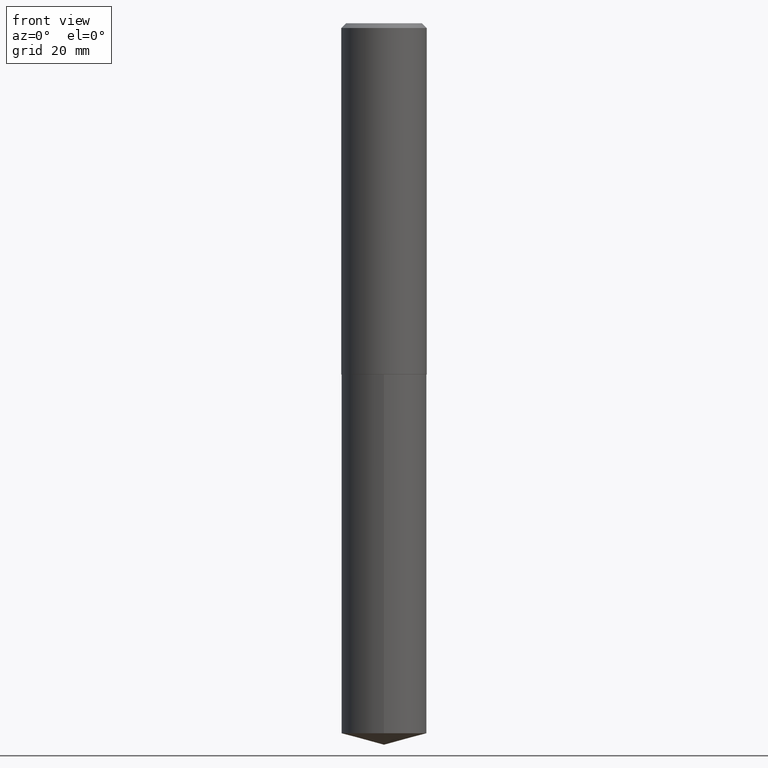
[diagram: clean part render]
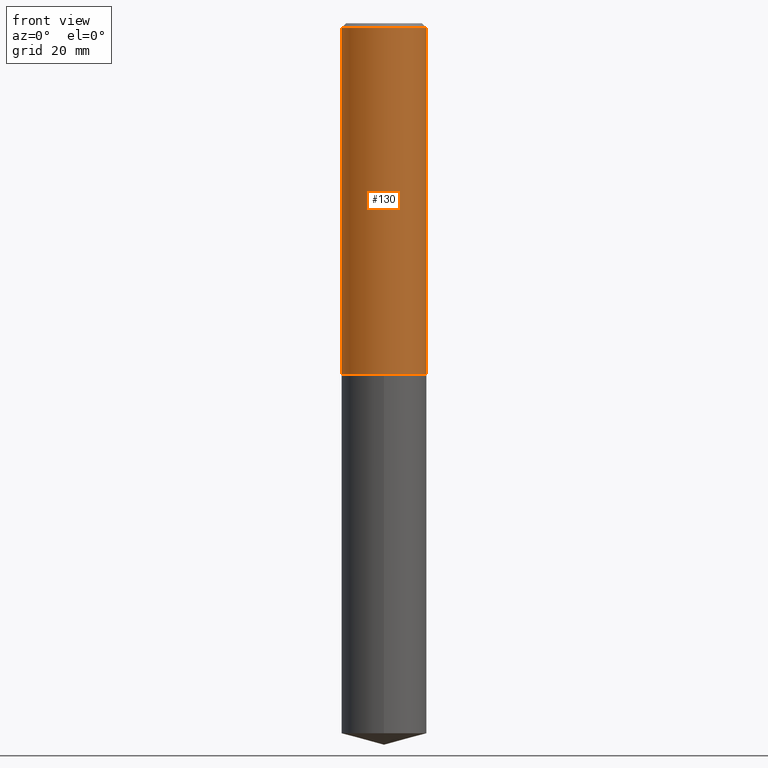
[diagram: same view with one face highlighted and labeled with its STEP entity id]
A machine part, front view. The second image highlights one B-rep face of the part: STEP entity #130.
In plain terms, the highlighted cylindrical surface (partial cylindrical patch) has radius 7.1438 mm, axis along (-0, 0, 1).
Its self-contained STEP definition (entity closure, byte-faithful):
#6 = CARTESIAN_POINT ( 'NONE',  ( -0.2812500000000001665, 1.998401444325282956E-15, -1.383450494134192829E-29 ) ) ;
#17 = EDGE_CURVE ( 'NONE', #211, #205, #274, .T. ) ;
#23 = ORIENTED_EDGE ( 'NONE', *, *, #17, .F. ) ;
#40 = DIRECTION ( 'NONE',  ( -2.445468806185136877E-29, 3.491481338843145188E-15, 1.000000000000000000 ) ) ;
#64 = DIRECTION ( 'NONE',  ( 1.000000000000000000, -6.982962677686266711E-15, 0.000000000000000000 ) ) ;
#68 = DIRECTION ( 'NONE',  ( -2.445468806185136597E-29, 3.491481338843145583E-15, 1.000000000000000000 ) ) ;
#99 = CARTESIAN_POINT ( 'NONE',  ( 0.000000000000000000, 0.000000000000000000, 0.000000000000000000 ) ) ;
#107 = EDGE_CURVE ( 'NONE', #205, #244, #310, .T. ) ;
#130 = ADVANCED_FACE ( 'NONE', ( #326 ), #301, .T. ) ;
#136 = VERTEX_POINT ( 'NONE', #327 ) ;
#153 = CARTESIAN_POINT ( 'NONE',  ( -0.2812500000000002776, -6.073903411080069429E-15, -2.312000000000000277 ) ) ;
#171 = EDGE_LOOP ( 'NONE', ( #23, #355, #318, #199 ) ) ;
#187 = DIRECTION ( 'NONE',  ( 1.000000000000000000, -6.982962677686265133E-15, 4.876176775795935232E-29 ) ) ;
#193 = CARTESIAN_POINT ( 'NONE',  ( -0.2812500000000000000, -2.092305379296817590E-15, -0.03125000000000022204 ) ) ;
#194 = CARTESIAN_POINT ( 'NONE',  ( 5.653923879900035579E-29, -8.072304855405352780E-15, -2.312000000000000277 ) ) ;
#199 = ORIENTED_EDGE ( 'NONE', *, *, #107, .F. ) ;
#205 = VERTEX_POINT ( 'NONE', #193 ) ;
#211 = VERTEX_POINT ( 'NONE', #153 ) ;
#218 = EDGE_CURVE ( 'NONE', #136, #244, #277, .T. ) ;
#220 = VECTOR ( 'NONE', #306, 39.37007874015748143 ) ;
#235 = EDGE_CURVE ( 'NONE', #211, #136, #289, .T. ) ;
#244 = VERTEX_POINT ( 'NONE', #283 ) ;
#251 = AXIS2_PLACEMENT_3D ( 'NONE', #99, #357, #187 ) ;
#255 = DIRECTION ( 'NONE',  ( 1.000000000000000000, -6.982962677686266711E-15, 0.000000000000000000 ) ) ;
#274 = LINE ( 'NONE', #6, #220 ) ;
#276 = CARTESIAN_POINT ( 'NONE',  ( 7.642090019328606165E-31, -1.091087918388490760E-16, -0.03125000000000022204 ) ) ;
#277 = LINE ( 'NONE', #364, #344 ) ;
#283 = CARTESIAN_POINT ( 'NONE',  ( 0.2812500000000000000, -2.073067044938111613E-15, -0.03125000000000022204 ) ) ;
#289 = CIRCLE ( 'NONE', #380, 0.2812500000000002776 ) ;
#301 = CYLINDRICAL_SURFACE ( 'NONE', #251, 0.2812500000000001665 ) ;
#306 = DIRECTION ( 'NONE',  ( -2.445468806185136877E-29, 3.491481338843145188E-15, 1.000000000000000000 ) ) ;
#310 = CIRCLE ( 'NONE', #368, 0.2812500000000000000 ) ;
#311 = DIRECTION ( 'NONE',  ( -2.445468806185136597E-29, 3.491481338843145583E-15, 1.000000000000000000 ) ) ;
#318 = ORIENTED_EDGE ( 'NONE', *, *, #218, .T. ) ;
#326 = FACE_OUTER_BOUND ( 'NONE', #171, .T. ) ;
#327 = CARTESIAN_POINT ( 'NONE',  ( 0.2812500000000002776, -1.003626310850461766E-14, -2.312000000000000277 ) ) ;
#344 = VECTOR ( 'NONE', #40, 39.37007874015748143 ) ;
#355 = ORIENTED_EDGE ( 'NONE', *, *, #235, .T. ) ;
#357 = DIRECTION ( 'NONE',  ( -2.445468806185136597E-29, 3.491481338843145583E-15, 1.000000000000000000 ) ) ;
#364 = CARTESIAN_POINT ( 'NONE',  ( 0.2812500000000001665, -1.963958253099263301E-15, 1.371424718192607572E-29 ) ) ;
#368 = AXIS2_PLACEMENT_3D ( 'NONE', #276, #68, #64 ) ;
#380 = AXIS2_PLACEMENT_3D ( 'NONE', #194, #311, #255 ) ;